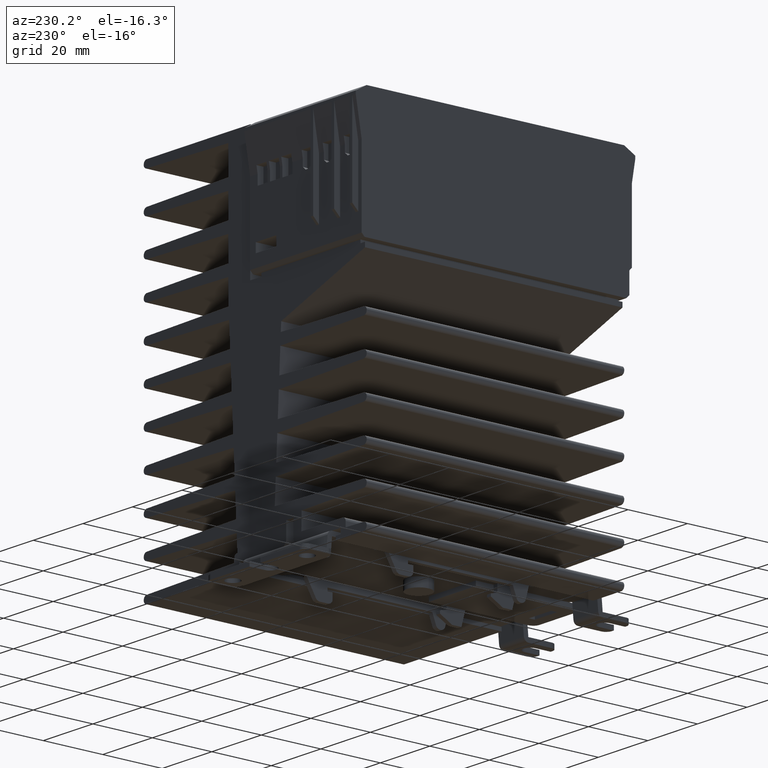
[diagram: clean part render]
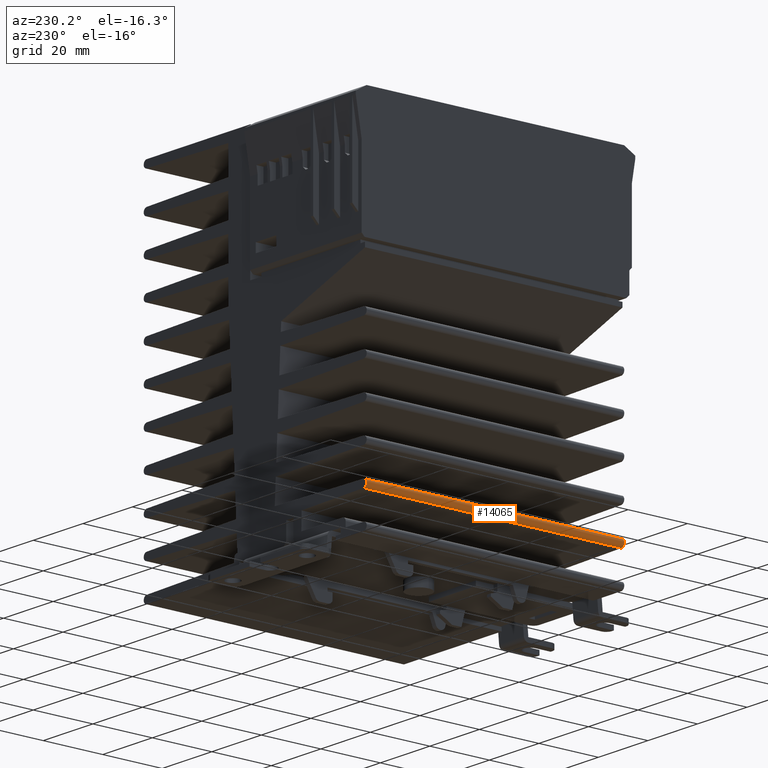
[diagram: same view with one face highlighted and labeled with its STEP entity id]
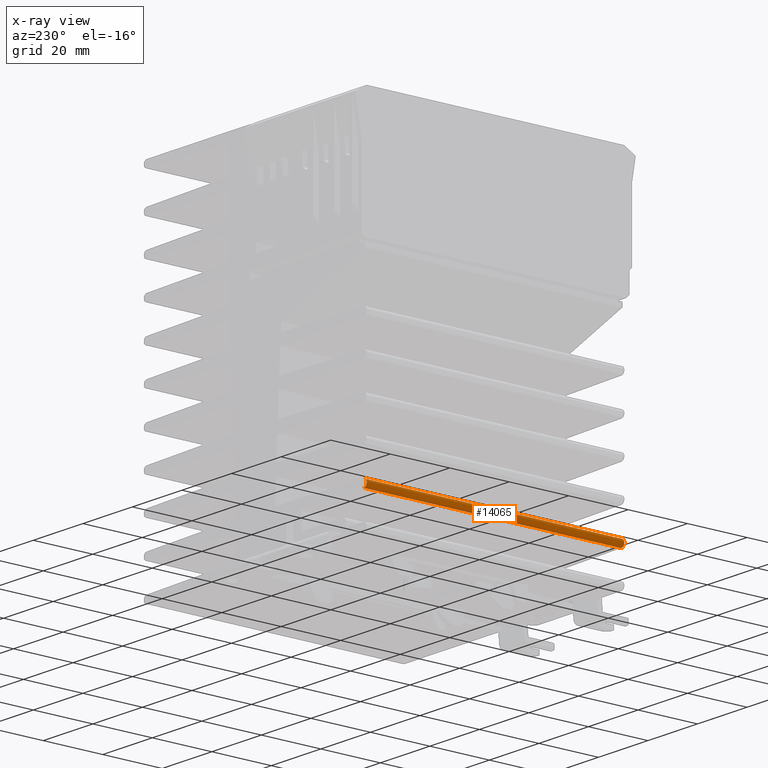
[diagram: x-ray of the same camera — body ghosted, the highlighted face saturated]
A machine part, auxiliary view. The second image highlights one B-rep face of the part: STEP entity #14065.
The next image is the same camera in x-ray: the body ghosted, the highlighted face saturated — about 0% of this face is hidden behind the body in this view.
In plain terms, the highlighted cylindrical surface (edge-blend (fillet) strip) has radius 1.25 mm, axis along (0, -1, 0).
Its self-contained STEP definition (entity closure, byte-faithful):
#809 = VERTEX_POINT ( 'NONE', #10675 ) ;
#1059 = CYLINDRICAL_SURFACE ( 'NONE', #6234, 0.04921259842519689481 ) ;
#1429 = CARTESIAN_POINT ( 'NONE',  ( -0.8366141732283465249, 1.704724409448818978, -2.594488188976378229 ) ) ;
#1493 = ORIENTED_EDGE ( 'NONE', *, *, #2876, .T. ) ;
#1723 = CIRCLE ( 'NONE', #9450, 0.04921259842519689481 ) ;
#2059 = LINE ( 'NONE', #7466, #7634 ) ;
#2067 = EDGE_CURVE ( 'NONE', #809, #6375, #5563, .T. ) ;
#2834 = AXIS2_PLACEMENT_3D ( 'NONE', #1429, #4630, #10983 ) ;
#2876 = EDGE_CURVE ( 'NONE', #8479, #4607, #1723, .T. ) ;
#3187 = DIRECTION ( 'NONE',  ( 0.000000000000000000, -1.000000000000000000, 0.000000000000000000 ) ) ;
#3563 = EDGE_CURVE ( 'NONE', #809, #4607, #2059, .T. ) ;
#3583 = DIRECTION ( 'NONE',  ( -0.000000000000000000, 1.000000000000000000, -0.000000000000000000 ) ) ;
#3727 = CARTESIAN_POINT ( 'NONE',  ( -0.8366141732283465249, -1.704724409448818978, -2.594488188976378229 ) ) ;
#4023 = ORIENTED_EDGE ( 'NONE', *, *, #12509, .T. ) ;
#4607 = VERTEX_POINT ( 'NONE', #8406 ) ;
#4630 = DIRECTION ( 'NONE',  ( 0.000000000000000000, -1.000000000000000000, 0.000000000000000000 ) ) ;
#5341 = CARTESIAN_POINT ( 'NONE',  ( -0.8374730514978977469, 1.704724409448818978, -2.643693292084468460 ) ) ;
#5401 = EDGE_LOOP ( 'NONE', ( #11789, #4023, #1493, #8759 ) ) ;
#5563 = CIRCLE ( 'NONE', #2834, 0.04921259842519689481 ) ;
#6234 = AXIS2_PLACEMENT_3D ( 'NONE', #13109, #9896, #6469 ) ;
#6375 = VERTEX_POINT ( 'NONE', #8946 ) ;
#6469 = DIRECTION ( 'NONE',  ( 0.000000000000000000, 0.000000000000000000, 1.000000000000000000 ) ) ;
#7466 = CARTESIAN_POINT ( 'NONE',  ( -0.8374730514978977469, 1.704724409448818978, -2.545283085868287110 ) ) ;
#7478 = LINE ( 'NONE', #5341, #13032 ) ;
#7634 = VECTOR ( 'NONE', #3187, 39.37007874015748143 ) ;
#8406 = CARTESIAN_POINT ( 'NONE',  ( -0.8374730514978977469, -1.704724409448818978, -2.545283085868287110 ) ) ;
#8479 = VERTEX_POINT ( 'NONE', #8701 ) ;
#8701 = CARTESIAN_POINT ( 'NONE',  ( -0.8374730514978977469, -1.704724409448818978, -2.643693292084468460 ) ) ;
#8759 = ORIENTED_EDGE ( 'NONE', *, *, #3563, .F. ) ;
#8946 = CARTESIAN_POINT ( 'NONE',  ( -0.8374730514978977469, 1.704724409448818978, -2.643693292084468460 ) ) ;
#9450 = AXIS2_PLACEMENT_3D ( 'NONE', #3727, #3583, #9998 ) ;
#9896 = DIRECTION ( 'NONE',  ( 0.000000000000000000, -1.000000000000000000, 0.000000000000000000 ) ) ;
#9998 = DIRECTION ( 'NONE',  ( 0.000000000000000000, 0.000000000000000000, 1.000000000000000000 ) ) ;
#10675 = CARTESIAN_POINT ( 'NONE',  ( -0.8374730514978977469, 1.704724409448818978, -2.545283085868287110 ) ) ;
#10983 = DIRECTION ( 'NONE',  ( 0.000000000000000000, 0.000000000000000000, -1.000000000000000000 ) ) ;
#11040 = FACE_OUTER_BOUND ( 'NONE', #5401, .T. ) ;
#11789 = ORIENTED_EDGE ( 'NONE', *, *, #2067, .T. ) ;
#12509 = EDGE_CURVE ( 'NONE', #6375, #8479, #7478, .T. ) ;
#13032 = VECTOR ( 'NONE', #14051, 39.37007874015748143 ) ;
#13109 = CARTESIAN_POINT ( 'NONE',  ( -0.8366141732283465249, 1.704724409448818978, -2.594488188976378229 ) ) ;
#14051 = DIRECTION ( 'NONE',  ( 0.000000000000000000, -1.000000000000000000, 0.000000000000000000 ) ) ;
#14065 = ADVANCED_FACE ( 'NONE', ( #11040 ), #1059, .T. ) ;